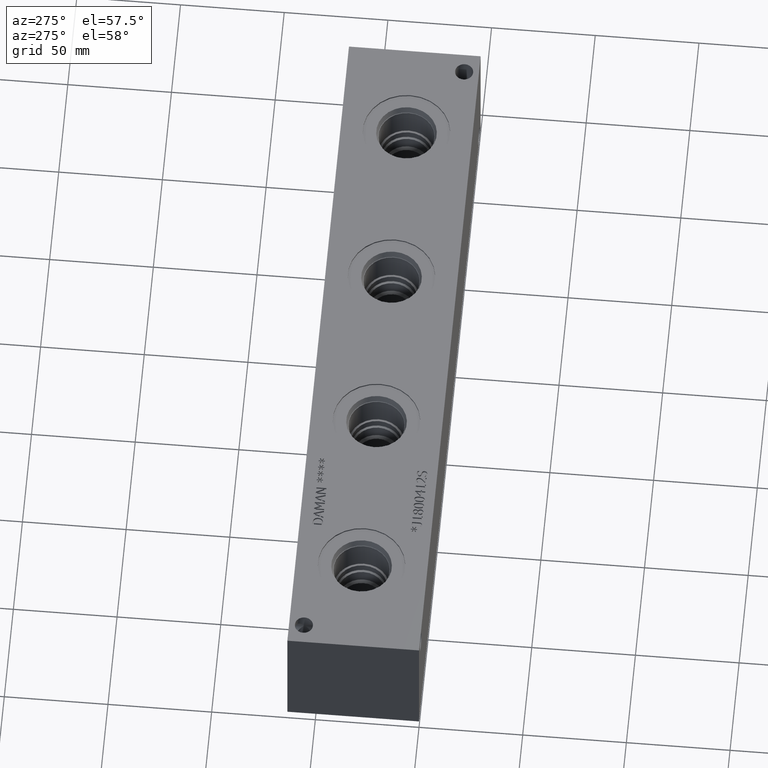
[diagram: clean part render]
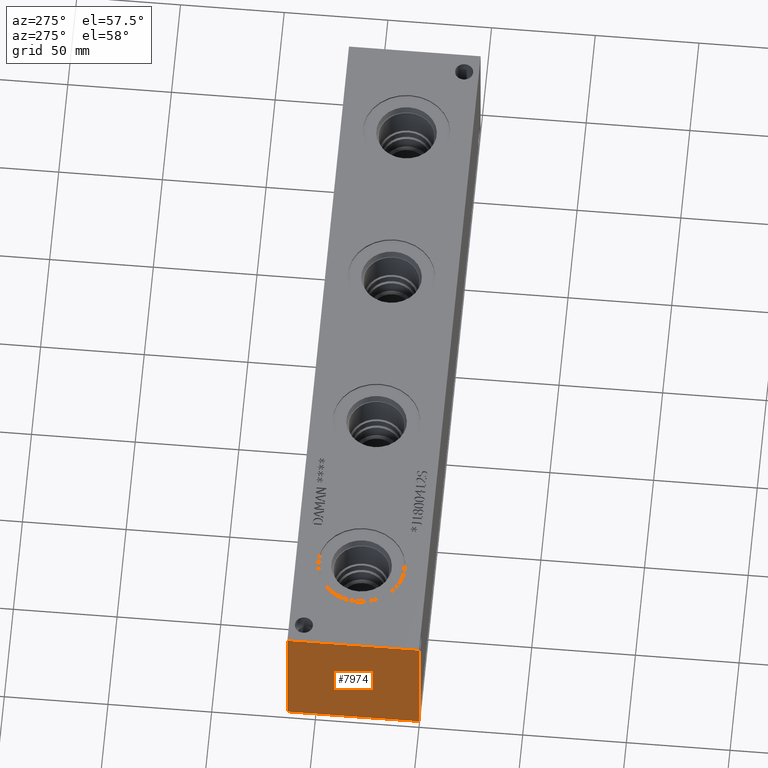
[diagram: same view with one face highlighted and labeled with its STEP entity id]
A machine part, auxiliary view. The second image highlights one B-rep face of the part: STEP entity #7974.
In plain terms, the highlighted planar face has unit normal (-1, 0, 0).
Its self-contained STEP definition (entity closure, byte-faithful):
#986=FACE_OUTER_BOUND('',#1443,.T.);
#1443=EDGE_LOOP('',(#6991,#6992,#6993,#6994));
#1752=LINE('',#12160,#2511);
#2210=LINE('',#13594,#2969);
#2211=LINE('',#13595,#2970);
#2212=LINE('',#13596,#2971);
#2511=VECTOR('',#8952,10.);
#2969=VECTOR('',#10234,10.);
#2970=VECTOR('',#10235,10.);
#2971=VECTOR('',#10236,10.);
#3273=VERTEX_POINT('',#12153);
#3276=VERTEX_POINT('',#12158);
#3711=VERTEX_POINT('',#13592);
#3712=VERTEX_POINT('',#13593);
#4162=EDGE_CURVE('',#3276,#3273,#1752,.T.);
#4812=EDGE_CURVE('',#3711,#3712,#2210,.T.);
#4813=EDGE_CURVE('',#3712,#3273,#2211,.T.);
#4814=EDGE_CURVE('',#3711,#3276,#2212,.T.);
#6991=ORIENTED_EDGE('',*,*,#4812,.T.);
#6992=ORIENTED_EDGE('',*,*,#4813,.T.);
#6993=ORIENTED_EDGE('',*,*,#4162,.F.);
#6994=ORIENTED_EDGE('',*,*,#4814,.F.);
#7267=PLANE('',#8487);
#7974=ADVANCED_FACE('',(#986),#7267,.T.);
#8487=AXIS2_PLACEMENT_3D('',#13591,#10232,#10233);
#8952=DIRECTION('',(0.,-1.,0.));
#10232=DIRECTION('center_axis',(-1.,0.,0.));
#10233=DIRECTION('ref_axis',(0.,-1.,0.));
#10234=DIRECTION('',(0.,-1.,0.));
#10235=DIRECTION('',(0.,0.,1.));
#10236=DIRECTION('',(0.,0.,1.));
#12153=CARTESIAN_POINT('',(0.,0.,63.5));
#12158=CARTESIAN_POINT('',(0.,63.5,63.5));
#12160=CARTESIAN_POINT('',(0.,63.5,63.5));
#13591=CARTESIAN_POINT('Origin',(0.,63.5,0.));
#13592=CARTESIAN_POINT('',(0.,63.5,0.));
#13593=CARTESIAN_POINT('',(0.,0.,0.));
#13594=CARTESIAN_POINT('',(0.,63.5,0.));
#13595=CARTESIAN_POINT('',(0.,0.,0.));
#13596=CARTESIAN_POINT('',(0.,63.5,0.));